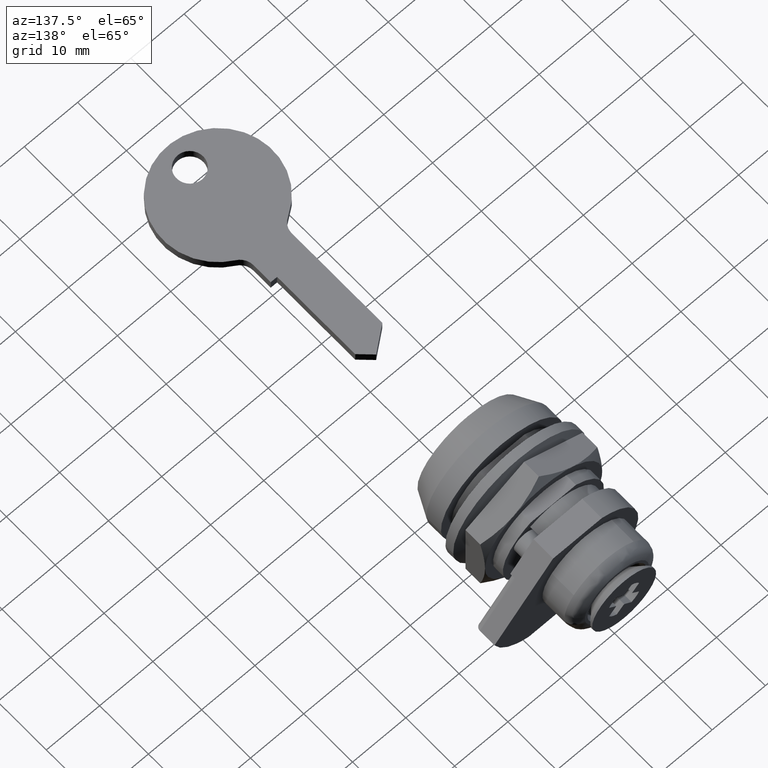
[diagram: clean part render]
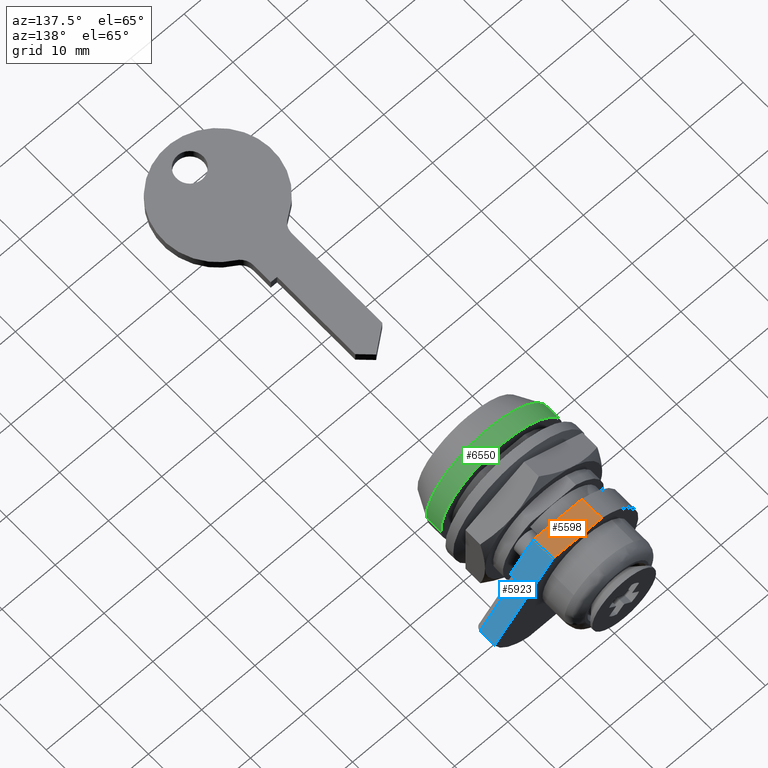
[diagram: same view with three faces highlighted in distinct colors, each labeled with its STEP entity id]
A machine part, auxiliary view with three faces highlighted in distinct colors.
Their STEP definitions:

[orange] entity #5598 — the highlighted face is a freeform B-spline surface patch.
#5563=CARTESIAN_POINT('',(24.199799992247229,-6.455668807328943,9.500000000000000));
#5564=CARTESIAN_POINT('',(19.800199900464410,-6.455668807328943,9.500000000000000));
#5565=CARTESIAN_POINT('',(24.199799992247229,3.578168051212522,9.500000000000000));
#5566=CARTESIAN_POINT('',(19.800199900464410,3.578168051212522,9.500000000000000));
#5567=B_SPLINE_SURFACE_WITH_KNOTS('',1,1,((#5563,#5565),(#5564,#5566)),.UNSPECIFIED.,.F.,.F.,.U.,(2,2),(2,2),(0.0,4.399600091782816),(0.0,10.033836858541470),.UNSPECIFIED.);
#5568=CARTESIAN_POINT('',(20.0,3.122498999199200,9.500000000000000));
#5569=VERTEX_POINT('',#5568);
#5570=CARTESIAN_POINT('',(20.0,-6.000000000000110,9.500000000000000));
#5571=VERTEX_POINT('',#5570);
#5572=CARTESIAN_POINT('',(20.0,3.122498999199200,9.500000000000000));
#5573=CARTESIAN_POINT('',(20.0,-6.000000000000110,9.500000000000000));
#5574=QUASI_UNIFORM_CURVE('',1,(#5572,#5573),.UNSPECIFIED.,.F.,.U.);
#5575=EDGE_CURVE('',#5569,#5571,#5574,.T.);
#5576=ORIENTED_EDGE('',*,*,#5575,.T.);
#5577=CARTESIAN_POINT('',(24.0,-6.000000000000110,9.500000000000000));
#5578=VERTEX_POINT('',#5577);
#5579=CARTESIAN_POINT('',(24.0,-6.000000000000110,9.500000000000000));
#5580=CARTESIAN_POINT('',(20.0,-6.000000000000110,9.500000000000000));
#5581=QUASI_UNIFORM_CURVE('',1,(#5579,#5580),.UNSPECIFIED.,.F.,.U.);
#5582=EDGE_CURVE('',#5578,#5571,#5581,.T.);
#5583=ORIENTED_EDGE('',*,*,#5582,.F.);
#5584=CARTESIAN_POINT('',(24.0,3.122498999199200,9.500000000000000));
#5585=VERTEX_POINT('',#5584);
#5586=CARTESIAN_POINT('',(24.0,3.122498999199200,9.500000000000000));
#5587=CARTESIAN_POINT('',(24.0,-6.000000000000110,9.500000000000000));
#5588=QUASI_UNIFORM_CURVE('',1,(#5586,#5587),.UNSPECIFIED.,.F.,.U.);
#5589=EDGE_CURVE('',#5585,#5578,#5588,.T.);
#5590=ORIENTED_EDGE('',*,*,#5589,.F.);
#5591=CARTESIAN_POINT('',(24.0,3.122498999199200,9.500000000000000));
#5592=CARTESIAN_POINT('',(20.0,3.122498999199200,9.500000000000000));
#5593=QUASI_UNIFORM_CURVE('',1,(#5591,#5592),.UNSPECIFIED.,.F.,.U.);
#5594=EDGE_CURVE('',#5585,#5569,#5593,.T.);
#5595=ORIENTED_EDGE('',*,*,#5594,.T.);
#5596=EDGE_LOOP('',(#5576,#5583,#5590,#5595));
#5597=FACE_OUTER_BOUND('',#5596,.T.);
#5598=ADVANCED_FACE('',(#5597),#5567,.F.);

[blue] entity #5923 — the highlighted face is a freeform B-spline surface patch.
#5533=CARTESIAN_POINT('',(21.0,-10.393721051079799,4.507135169227600));
#5534=VERTEX_POINT('',#5533);
#5548=CARTESIAN_POINT('',(20.0,-10.393721051079799,4.507135169227600));
#5549=VERTEX_POINT('',#5548);
#5550=CARTESIAN_POINT('',(21.0,-10.393721051079799,4.507135169227600));
#5551=CARTESIAN_POINT('',(20.0,-10.393721051079799,4.507135169227600));
#5552=QUASI_UNIFORM_CURVE('',1,(#5550,#5551),.UNSPECIFIED.,.F.,.U.);
#5553=EDGE_CURVE('',#5534,#5549,#5552,.T.);
#5570=CARTESIAN_POINT('',(20.0,-6.000000000000110,9.500000000000000));
#5571=VERTEX_POINT('',#5570);
#5577=CARTESIAN_POINT('',(24.0,-6.000000000000110,9.500000000000000));
#5578=VERTEX_POINT('',#5577);
#5579=CARTESIAN_POINT('',(24.0,-6.000000000000110,9.500000000000000));
#5580=CARTESIAN_POINT('',(20.0,-6.000000000000110,9.500000000000000));
#5581=QUASI_UNIFORM_CURVE('',1,(#5579,#5580),.UNSPECIFIED.,.F.,.U.);
#5582=EDGE_CURVE('',#5578,#5571,#5581,.T.);
#5741=CARTESIAN_POINT('',(21.0,-17.000288799675101,-3.000328181448955));
#5742=VERTEX_POINT('',#5741);
#5827=CARTESIAN_POINT('',(21.0,-10.393721051079799,4.507135169227600));
#5828=CARTESIAN_POINT('',(21.0,-17.000288799675101,-3.000328181448955));
#5829=QUASI_UNIFORM_CURVE('',1,(#5827,#5828),.UNSPECIFIED.,.F.,.U.);
#5830=EDGE_CURVE('',#5534,#5742,#5829,.T.);
#5877=CARTESIAN_POINT('',(24.0,-17.000288799675101,-3.000328181448955));
#5878=VERTEX_POINT('',#5877);
#5879=CARTESIAN_POINT('',(24.0,-17.000288799675101,-3.000328181448955));
#5880=CARTESIAN_POINT('',(21.0,-17.000288799675101,-3.000328181448955));
#5881=QUASI_UNIFORM_CURVE('',1,(#5879,#5880),.UNSPECIFIED.,.F.,.U.);
#5882=EDGE_CURVE('',#5878,#5742,#5881,.T.);
#5902=CARTESIAN_POINT('',(19.800200007752782,-17.549752790846810,-3.624719080507723));
#5903=CARTESIAN_POINT('',(19.800200007752782,-5.450535320376694,10.124391681390280));
#5904=CARTESIAN_POINT('',(24.199800099535590,-17.549752790846810,-3.624719080507723));
#5905=CARTESIAN_POINT('',(24.199800099535590,-5.450535320376694,10.124391681390280));
#5906=B_SPLINE_SURFACE_WITH_KNOTS('',1,1,((#5902,#5904),(#5903,#5905)),.UNSPECIFIED.,.F.,.F.,.U.,(2,2),(2,2),(0.0,18.314723861982429),(0.0,4.399600091782812),.UNSPECIFIED.);
#5907=CARTESIAN_POINT('',(24.0,-6.000000000000110,9.500000000000000));
#5908=CARTESIAN_POINT('',(24.0,-17.000288799675101,-3.000328181448955));
#5909=QUASI_UNIFORM_CURVE('',1,(#5907,#5908),.UNSPECIFIED.,.F.,.U.);
#5910=EDGE_CURVE('',#5578,#5878,#5909,.T.);
#5911=ORIENTED_EDGE('',*,*,#5910,.F.);
#5912=ORIENTED_EDGE('',*,*,#5582,.T.);
#5913=CARTESIAN_POINT('',(20.0,-6.000000000000110,9.500000000000000));
#5914=CARTESIAN_POINT('',(20.0,-10.393721051079799,4.507135169227600));
#5915=QUASI_UNIFORM_CURVE('',1,(#5913,#5914),.UNSPECIFIED.,.F.,.U.);
#5916=EDGE_CURVE('',#5571,#5549,#5915,.T.);
#5917=ORIENTED_EDGE('',*,*,#5916,.T.);
#5918=ORIENTED_EDGE('',*,*,#5553,.F.);
#5919=ORIENTED_EDGE('',*,*,#5830,.T.);
#5920=ORIENTED_EDGE('',*,*,#5882,.F.);
#5921=EDGE_LOOP('',(#5911,#5912,#5917,#5918,#5919,#5920));
#5922=FACE_OUTER_BOUND('',#5921,.T.);
#5923=ADVANCED_FACE('',(#5922),#5906,.F.);

[green] entity #6550 — the highlighted face is a freeform B-spline surface patch.
#6229=CARTESIAN_POINT('',(3.999999999999800,11.419609553175331,1.357393698610240));
#6230=VERTEX_POINT('',#6229);
#6296=CARTESIAN_POINT('',(3.999999999999800,-11.478550181844930,-0.702058204757670));
#6297=VERTEX_POINT('',#6296);
#6311=CARTESIAN_POINT('',(3.999999999999800,0.0,11.500000000000011));
#6312=VERTEX_POINT('',#6311);
#6313=CARTESIAN_POINT('',(3.999999999999800,-11.478550181844939,-0.702058204757670));
#6314=CARTESIAN_POINT('',(3.999999999999799,-11.500000000000000,-0.351356778040887));
#6315=CARTESIAN_POINT('',(3.999999999999800,-11.500000000000000,1.421085E-014));
#6316=CARTESIAN_POINT('',(3.999999999999800,-11.500000000000000,11.500000000000016));
#6317=CARTESIAN_POINT('',(3.999999999999800,0.0,11.500000000000011));
#6325=(BOUNDED_CURVE()B_SPLINE_CURVE(2,(#6313,#6314,#6315,#6316,#6317),.UNSPECIFIED.,.F.,.U.)B_SPLINE_CURVE_WITH_KNOTS((3,2,3),(0.739332962238757,0.750000000000000,1.0),.UNSPECIFIED.)CURVE()GEOMETRIC_REPRESENTATION_ITEM()RATIONAL_B_SPLINE_CURVE((0.976072041666318,0.987502787899619,1.0,0.707106781186548,1.0))REPRESENTATION_ITEM(''));
#6326=EDGE_CURVE('',#6297,#6312,#6325,.T.);
#6328=CARTESIAN_POINT('',(3.999999999999800,0.0,11.500000000000011));
#6329=CARTESIAN_POINT('',(3.999999999999800,10.214007048337143,11.500000000000014));
#6330=CARTESIAN_POINT('',(3.999999999999800,11.419609553175331,1.357393698610240));
#6338=(BOUNDED_CURVE()B_SPLINE_CURVE(2,(#6328,#6329,#6330),.UNSPECIFIED.,.F.,.U.)B_SPLINE_CURVE_WITH_KNOTS((3,3),(0.0,0.229562473513942),.UNSPECIFIED.)CURVE()GEOMETRIC_REPRESENTATION_ITEM()RATIONAL_B_SPLINE_CURVE((1.0,0.731050832854894,0.956026754184550))REPRESENTATION_ITEM(''));
#6339=EDGE_CURVE('',#6312,#6230,#6338,.T.);
#6445=CARTESIAN_POINT('',(6.999999999999799,11.419609553175331,1.357393698610239));
#6446=VERTEX_POINT('',#6445);
#6464=CARTESIAN_POINT('',(6.999999999999800,-11.478550181844930,-0.702058204757667));
#6465=VERTEX_POINT('',#6464);
#6479=CARTESIAN_POINT('',(6.999999999999800,-11.478550181844930,-0.702058204757667));
#6480=CARTESIAN_POINT('',(3.999999999999800,-11.478550181844930,-0.702058204757670));
#6481=QUASI_UNIFORM_CURVE('',1,(#6479,#6480),.UNSPECIFIED.,.F.,.U.);
#6482=EDGE_CURVE('',#6465,#6297,#6481,.T.);
#6488=CARTESIAN_POINT('',(6.999999999999799,11.419609553175331,1.357393698610239));
#6489=CARTESIAN_POINT('',(3.999999999999800,11.419609553175331,1.357393698610240));
#6490=QUASI_UNIFORM_CURVE('',1,(#6488,#6489),.UNSPECIFIED.,.F.,.U.);
#6491=EDGE_CURVE('',#6446,#6230,#6490,.T.);
#6496=CARTESIAN_POINT('',(7.074999999999801,-11.478550181851469,-0.702058204650841));
#6497=CARTESIAN_POINT('',(7.074999999999801,-12.180608386502323,10.776491977200626));
#6498=CARTESIAN_POINT('',(7.074999999999801,-0.702058204650855,11.478550181851480));
#6499=CARTESIAN_POINT('',(7.074999999999801,10.137750144654261,12.141541262424079));
#6500=CARTESIAN_POINT('',(7.074999999999803,11.419609553182164,1.357393698552737));
#6501=CARTESIAN_POINT('',(3.923124999999799,-11.478550181851469,-0.702058204650841));
#6502=CARTESIAN_POINT('',(3.923124999999799,-12.180608386502323,10.776491977200626));
#6503=CARTESIAN_POINT('',(3.923124999999799,-0.702058204650855,11.478550181851480));
#6504=CARTESIAN_POINT('',(3.923124999999799,10.137750144654261,12.141541262424079));
#6505=CARTESIAN_POINT('',(3.923124999999799,11.419609553182164,1.357393698552737));
#6513=(BOUNDED_SURFACE()B_SPLINE_SURFACE(2,1,((#6496,#6501),(#6497,#6502),(#6498,#6503),(#6499,#6504),(#6500,#6505)),.UNSPECIFIED.,.F.,.F.,.U.)B_SPLINE_SURFACE_WITH_KNOTS((3,2,3),(2,2),(0.0,19.053823869162368,37.345494783558237),(0.0,3.151875000000004),.UNSPECIFIED.)GEOMETRIC_REPRESENTATION_ITEM()RATIONAL_B_SPLINE_SURFACE(((1.0,1.0),(0.707106781186548,0.707106781186548),(1.0,1.0),(0.718822509939086,0.718822509939086),(0.977505800795127,0.977505800795127)))REPRESENTATION_ITEM('')SURFACE());
#6514=CARTESIAN_POINT('',(6.999999999999800,0.0,11.500000000000011));
#6515=VERTEX_POINT('',#6514);
#6516=CARTESIAN_POINT('',(6.999999999999800,0.0,11.500000000000011));
#6517=CARTESIAN_POINT('',(6.999999999999799,10.214007048337143,11.500000000000014));
#6518=CARTESIAN_POINT('',(6.999999999999799,11.419609553175331,1.357393698610239));
#6526=(BOUNDED_CURVE()B_SPLINE_CURVE(2,(#6516,#6517,#6518),.UNSPECIFIED.,.F.,.U.)B_SPLINE_CURVE_WITH_KNOTS((3,3),(0.0,0.229562473513942),.UNSPECIFIED.)CURVE()GEOMETRIC_REPRESENTATION_ITEM()RATIONAL_B_SPLINE_CURVE((1.0,0.731050832854894,0.956026754184550))REPRESENTATION_ITEM(''));
#6527=EDGE_CURVE('',#6515,#6446,#6526,.T.);
#6528=ORIENTED_EDGE('',*,*,#6527,.T.);
#6529=ORIENTED_EDGE('',*,*,#6491,.T.);
#6530=ORIENTED_EDGE('',*,*,#6339,.F.);
#6531=ORIENTED_EDGE('',*,*,#6326,.F.);
#6532=ORIENTED_EDGE('',*,*,#6482,.F.);
#6533=CARTESIAN_POINT('',(6.999999999999800,-11.478550181844936,-0.702058204757667));
#6534=CARTESIAN_POINT('',(6.999999999999800,-11.500000000000000,-0.351356778040883));
#6535=CARTESIAN_POINT('',(6.999999999999800,-11.500000000000000,1.421085E-014));
#6536=CARTESIAN_POINT('',(6.999999999999801,-11.500000000000000,11.500000000000016));
#6537=CARTESIAN_POINT('',(6.999999999999800,0.0,11.500000000000011));
#6545=(BOUNDED_CURVE()B_SPLINE_CURVE(2,(#6533,#6534,#6535,#6536,#6537),.UNSPECIFIED.,.F.,.U.)B_SPLINE_CURVE_WITH_KNOTS((3,2,3),(0.739332962238757,0.750000000000000,1.0),.UNSPECIFIED.)CURVE()GEOMETRIC_REPRESENTATION_ITEM()RATIONAL_B_SPLINE_CURVE((0.976072041666319,0.987502787899619,1.0,0.707106781186548,1.0))REPRESENTATION_ITEM(''));
#6546=EDGE_CURVE('',#6465,#6515,#6545,.T.);
#6547=ORIENTED_EDGE('',*,*,#6546,.T.);
#6548=EDGE_LOOP('',(#6528,#6529,#6530,#6531,#6532,#6547));
#6549=FACE_OUTER_BOUND('',#6548,.T.);
#6550=ADVANCED_FACE('',(#6549),#6513,.T.);